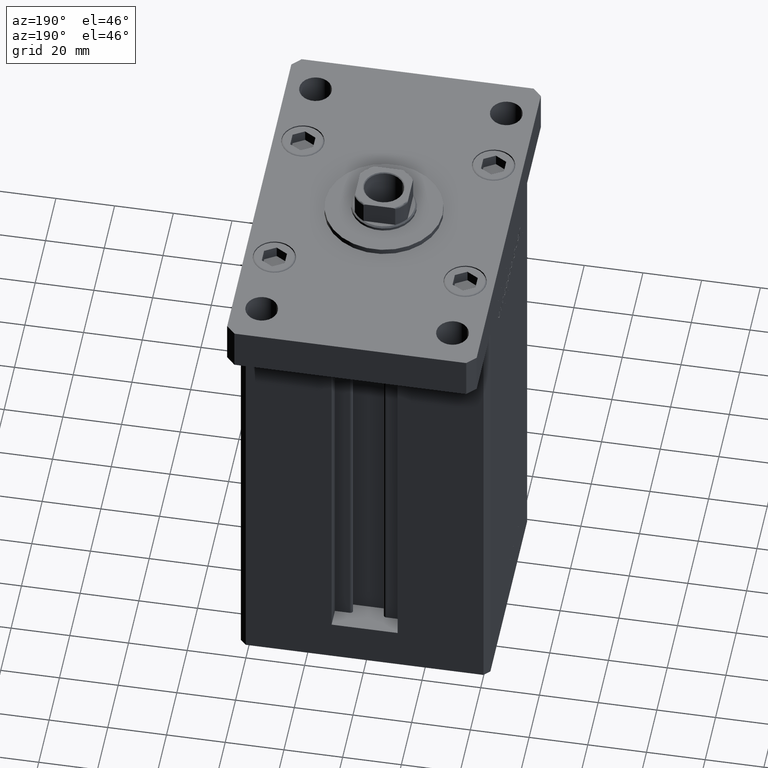
[diagram: clean part render]
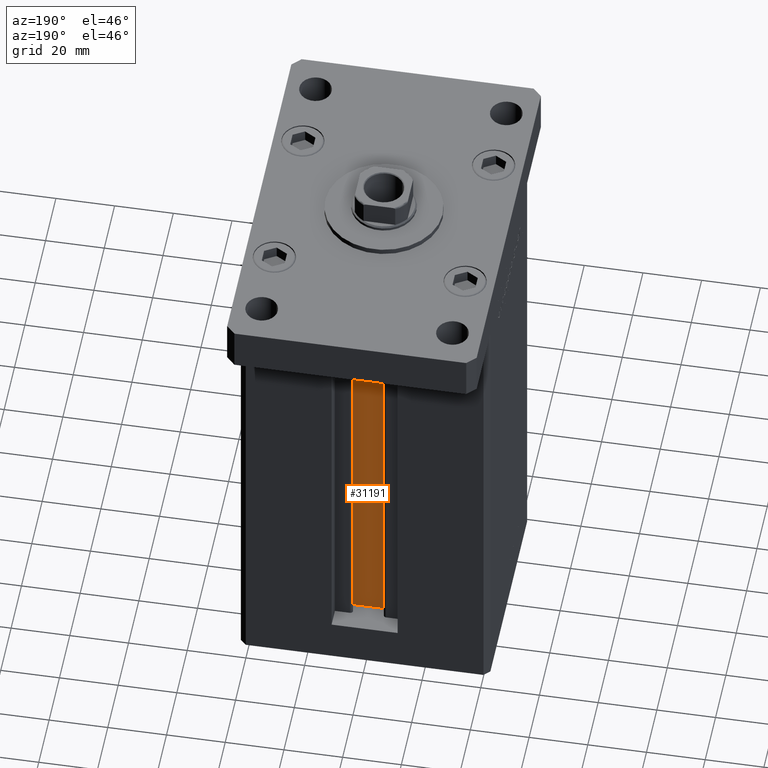
[diagram: same view with one face highlighted and labeled with its STEP entity id]
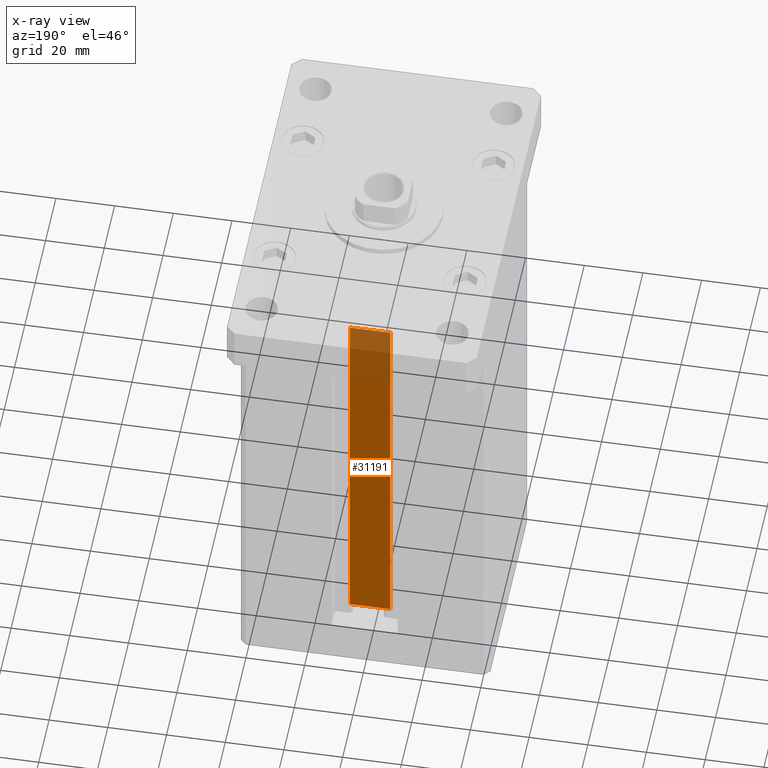
[diagram: x-ray of the same camera — body ghosted, the highlighted face saturated]
A machine part, auxiliary view. The second image highlights one B-rep face of the part: STEP entity #31191.
The next image is the same camera in x-ray: the body ghosted, the highlighted face saturated — about 19% of this face is hidden behind the body in this view.
In plain terms, the highlighted planar face has unit normal (0, -1, 0).
Its self-contained STEP definition (entity closure, byte-faithful):
#537 = VECTOR ( 'NONE', #52859, 1000.000000000000000 ) ;
#3332 = FACE_OUTER_BOUND ( 'NONE', #16749, .T. ) ;
#4332 = EDGE_CURVE ( 'NONE', #45965, #26645, #19305, .T. ) ;
#6841 = CARTESIAN_POINT ( 'NONE',  ( 6.876153656360465938, 26.99999999999986855, 0.000000000000000000 ) ) ;
#8419 = EDGE_CURVE ( 'NONE', #26762, #9847, #18920, .T. ) ;
#9847 = VERTEX_POINT ( 'NONE', #33776 ) ;
#11246 = VECTOR ( 'NONE', #44285, 1000.000000000000000 ) ;
#15259 = DIRECTION ( 'NONE',  ( -1.000000000000000000, 0.000000000000000000, 0.000000000000000000 ) ) ;
#16749 = EDGE_LOOP ( 'NONE', ( #32927, #49099, #37522, #20945 ) ) ;
#18920 = LINE ( 'NONE', #39833, #50328 ) ;
#19305 = LINE ( 'NONE', #6841, #11246 ) ;
#20296 = CARTESIAN_POINT ( 'NONE',  ( 6.876153656360465938, 26.99999999999986855, 0.000000000000000000 ) ) ;
#20945 = ORIENTED_EDGE ( 'NONE', *, *, #41062, .F. ) ;
#24259 = CARTESIAN_POINT ( 'NONE',  ( -6.876153656360465938, 26.99999999999986855, 0.000000000000000000 ) ) ;
#24589 = VECTOR ( 'NONE', #15259, 1000.000000000000000 ) ;
#26645 = VERTEX_POINT ( 'NONE', #48267 ) ;
#26762 = VERTEX_POINT ( 'NONE', #24259 ) ;
#27474 = LINE ( 'NONE', #44039, #24589 ) ;
#27909 = LINE ( 'NONE', #20296, #537 ) ;
#28017 = CARTESIAN_POINT ( 'NONE',  ( 6.876153656360465938, 26.99999999999986855, 0.000000000000000000 ) ) ;
#31191 = ADVANCED_FACE ( 'NONE', ( #3332 ), #44840, .F. ) ;
#32927 = ORIENTED_EDGE ( 'NONE', *, *, #4332, .F. ) ;
#33776 = CARTESIAN_POINT ( 'NONE',  ( -6.876153656360465938, 26.99999999999986855, 133.5000000000000000 ) ) ;
#37522 = ORIENTED_EDGE ( 'NONE', *, *, #8419, .T. ) ;
#39833 = CARTESIAN_POINT ( 'NONE',  ( -6.876153656360465938, 26.99999999999986855, 0.000000000000000000 ) ) ;
#41062 = EDGE_CURVE ( 'NONE', #26645, #9847, #27474, .T. ) ;
#44039 = CARTESIAN_POINT ( 'NONE',  ( 0.000000000000000000, 26.99999999999986855, 133.5000000000000000 ) ) ;
#44285 = DIRECTION ( 'NONE',  ( -0.000000000000000000, -0.000000000000000000, 1.000000000000000000 ) ) ;
#44300 = DIRECTION ( 'NONE',  ( 0.000000000000000000, -1.000000000000000000, -0.000000000000000000 ) ) ;
#44840 = PLANE ( 'NONE',  #45204 ) ;
#45204 = AXIS2_PLACEMENT_3D ( 'NONE', #28017, #44300, #48921 ) ;
#45965 = VERTEX_POINT ( 'NONE', #50129 ) ;
#47711 = DIRECTION ( 'NONE',  ( -0.000000000000000000, -0.000000000000000000, 1.000000000000000000 ) ) ;
#48267 = CARTESIAN_POINT ( 'NONE',  ( 6.876153656360465938, 26.99999999999986855, 133.5000000000000000 ) ) ;
#48758 = EDGE_CURVE ( 'NONE', #26762, #45965, #27909, .T. ) ;
#48921 = DIRECTION ( 'NONE',  ( 0.000000000000000000, 0.000000000000000000, -1.000000000000000000 ) ) ;
#49099 = ORIENTED_EDGE ( 'NONE', *, *, #48758, .F. ) ;
#50129 = CARTESIAN_POINT ( 'NONE',  ( 6.876153656360465938, 26.99999999999986855, 0.000000000000000000 ) ) ;
#50328 = VECTOR ( 'NONE', #47711, 1000.000000000000000 ) ;
#52859 = DIRECTION ( 'NONE',  ( 1.000000000000000000, -0.000000000000000000, -0.000000000000000000 ) ) ;